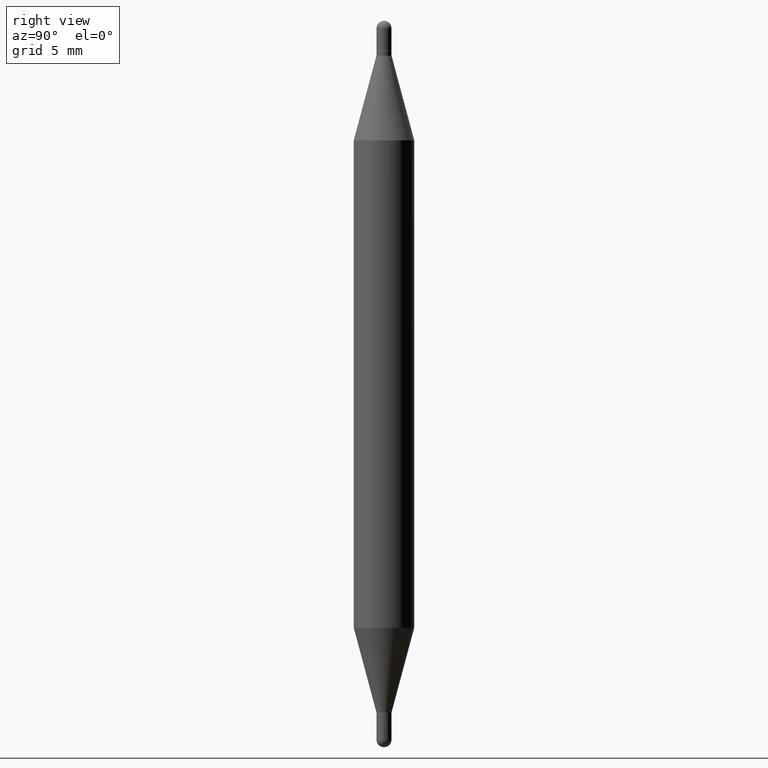
[diagram: clean part render]
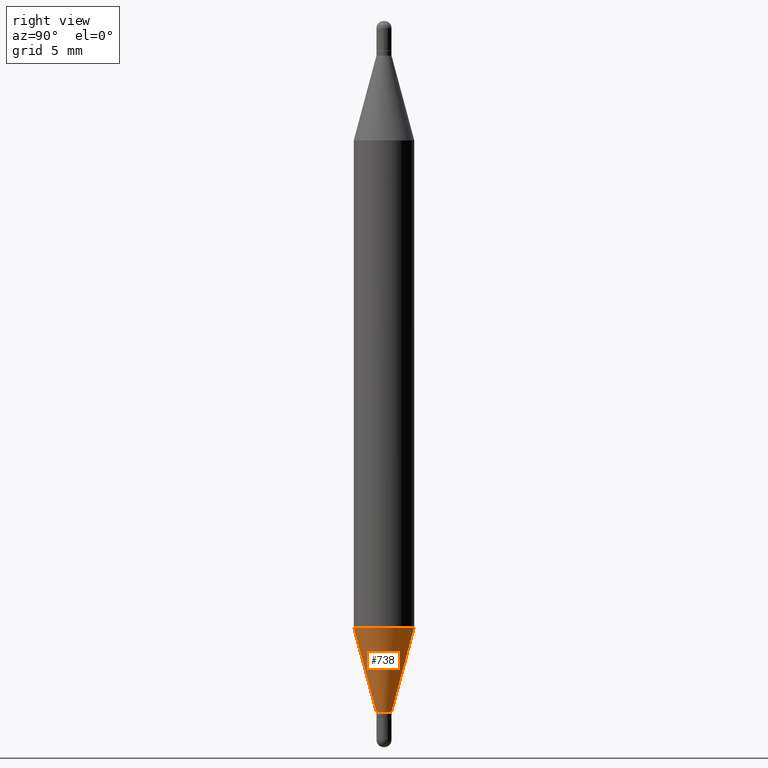
[diagram: same view with one face highlighted and labeled with its STEP entity id]
A machine part, right view. The second image highlights one B-rep face of the part: STEP entity #738.
In plain terms, the highlighted conical surface has half-angle 15 deg.
Its self-contained STEP definition (entity closure, byte-faithful):
#11 = VECTOR ( 'NONE', #1086, 39.37007874015747433 ) ;
#150 = EDGE_LOOP ( 'NONE', ( #605, #1006, #1068, #644 ) ) ;
#196 = VECTOR ( 'NONE', #1066, 39.37007874015748854 ) ;
#245 = AXIS2_PLACEMENT_3D ( 'NONE', #322, #662, #1013 ) ;
#318 = DIRECTION ( 'NONE',  ( -6.982962677686265922E-15, -1.000000000000000000, 4.370956789862821938E-15 ) ) ;
#319 = EDGE_CURVE ( 'NONE', #417, #1116, #1001, .T. ) ;
#322 = CARTESIAN_POINT ( 'NONE',  ( 3.496381040179191585E-29, -4.979746840238985695E-15, -1.428000000000000380 ) ) ;
#326 = EDGE_CURVE ( 'NONE', #1117, #404, #621, .T. ) ;
#404 = VERTEX_POINT ( 'NONE', #682 ) ;
#417 = VERTEX_POINT ( 'NONE', #612 ) ;
#489 = DIRECTION ( 'NONE',  ( -2.448446106568060842E-29, 3.487217675237383942E-15, 1.000000000000000000 ) ) ;
#493 = LINE ( 'NONE', #740, #11 ) ;
#537 = CARTESIAN_POINT ( 'NONE',  ( 1.108446667786093231E-16, 0.01559999999999484195, -1.428000000000000380 ) ) ;
#561 = LINE ( 'NONE', #537, #196 ) ;
#563 = DIRECTION ( 'NONE',  ( -2.448446106568060842E-29, 3.487217675237383942E-15, 1.000000000000000000 ) ) ;
#568 = FACE_OUTER_BOUND ( 'NONE', #150, .T. ) ;
#605 = ORIENTED_EDGE ( 'NONE', *, *, #326, .T. ) ;
#612 = CARTESIAN_POINT ( 'NONE',  ( -4.364351673553608545E-16, -0.06250000000000435763, -1.252966817125020560 ) ) ;
#621 = CIRCLE ( 'NONE', #245, 0.01559999999999982234 ) ;
#642 = CONICAL_SURFACE ( 'NONE', #984, 0.01559999999999982234, 0.2617993877991515173 ) ;
#644 = ORIENTED_EDGE ( 'NONE', *, *, #1103, .F. ) ;
#656 = CARTESIAN_POINT ( 'NONE',  ( 4.287811248607390144E-16, 0.06249999999999562156, -1.252966817125021226 ) ) ;
#662 = DIRECTION ( 'NONE',  ( -2.448446106568060842E-29, 3.487217675237383942E-15, 1.000000000000000000 ) ) ;
#682 = CARTESIAN_POINT ( 'NONE',  ( 1.108446667786099887E-16, 0.01559999999999484195, -1.428000000000000380 ) ) ;
#726 = AXIS2_PLACEMENT_3D ( 'NONE', #1009, #489, #318 ) ;
#738 = ADVANCED_FACE ( 'NONE', ( #568 ), #642, .T. ) ;
#740 = CARTESIAN_POINT ( 'NONE',  ( -1.089342177718695287E-16, -0.01560000000000480100, -1.428000000000000380 ) ) ;
#868 = EDGE_CURVE ( 'NONE', #404, #1116, #561, .T. ) ;
#870 = CARTESIAN_POINT ( 'NONE',  ( -1.089342177718695287E-16, -0.01560000000000480100, -1.428000000000000380 ) ) ;
#890 = DIRECTION ( 'NONE',  ( -6.982962677686265133E-15, -1.000000000000000000, 0.000000000000000000 ) ) ;
#984 = AXIS2_PLACEMENT_3D ( 'NONE', #1063, #563, #890 ) ;
#1001 = CIRCLE ( 'NONE', #726, 0.06249999999999999306 ) ;
#1006 = ORIENTED_EDGE ( 'NONE', *, *, #868, .T. ) ;
#1009 = CARTESIAN_POINT ( 'NONE',  ( 3.067821725048732845E-29, -4.369368031164300123E-15, -1.252966817125021004 ) ) ;
#1013 = DIRECTION ( 'NONE',  ( -6.982962677686265133E-15, -1.000000000000000000, 0.000000000000000000 ) ) ;
#1063 = CARTESIAN_POINT ( 'NONE',  ( 3.496381040179191585E-29, -4.979746840238985695E-15, -1.428000000000000380 ) ) ;
#1066 = DIRECTION ( 'NONE',  ( 1.839019923739608598E-15, 0.2588190451025261241, 0.9659258262890667579 ) ) ;
#1068 = ORIENTED_EDGE ( 'NONE', *, *, #319, .F. ) ;
#1086 = DIRECTION ( 'NONE',  ( -1.807323732225339211E-15, -0.2588190451025194627, 0.9659258262890687563 ) ) ;
#1103 = EDGE_CURVE ( 'NONE', #1117, #417, #493, .T. ) ;
#1116 = VERTEX_POINT ( 'NONE', #656 ) ;
#1117 = VERTEX_POINT ( 'NONE', #870 ) ;